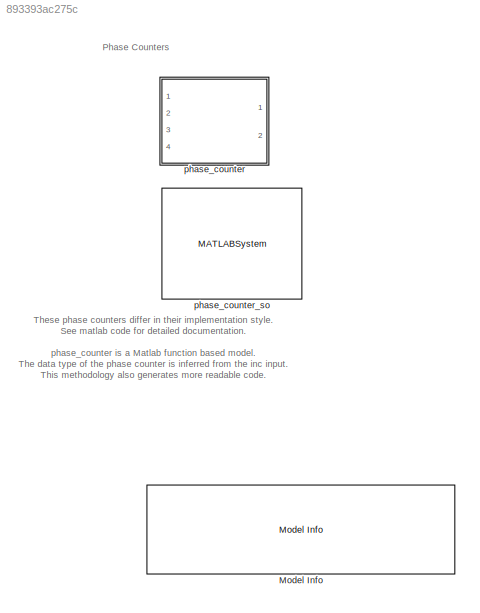
MODEL slx_893393ac275c
KIND library
CONFIG AbsTol = auto
CONFIG EnableMultiTasking = off
CONFIG FixedStep = auto
CONFIG MaxStep = auto
CONFIG MinStep = auto
CONFIG RelTol = 1e-3
CONFIG SampleTimeConstraint = Unconstrained
CONFIG Solver = VariableStepAuto
CONFIG SolverName = VariableStepAuto
CONFIG StartTime = 0.0
CONFIG StopTime = 10.0
BLOCK [Reference] Model Info  REF=simulink/Model-Wide
Utilities/Model Info
  Ports = []
  SourceBlock = simulink/Model-Wide\nUtilities/Model Info
  SourceProductBaseCode = SL
  SourceProductName = Simulink
  SourceType = CMBlock
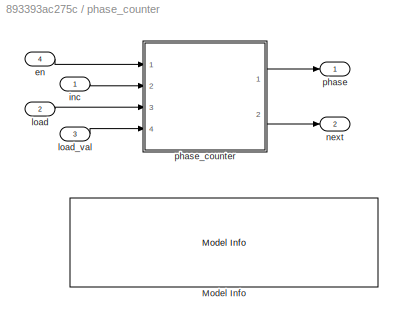
BLOCK [SubSystem] phase_counter
  Ports = [4, 2]
  RequestExecContextInheritance = off
BLOCK [Reference] phase_counter/Model Info  REF=simulink/Model-Wide
Utilities/Model Info
  Ports = []
  SourceBlock = simulink/Model-Wide\nUtilities/Model Info
  SourceProductBaseCode = SL
  SourceProductName = Simulink
  SourceType = CMBlock
BLOCK [Inport] phase_counter/en
  IconDisplay = Port number
  Port = 4
BLOCK [Inport] phase_counter/inc
  IconDisplay = Port number
BLOCK [Inport] phase_counter/load
  IconDisplay = Port number
  Port = 2
BLOCK [Inport] phase_counter/load_val
  IconDisplay = Port number
  Port = 3
BLOCK [Outport] phase_counter/next
  IconDisplay = Port number
  Port = 2
BLOCK [Outport] phase_counter/phase
  IconDisplay = Port number
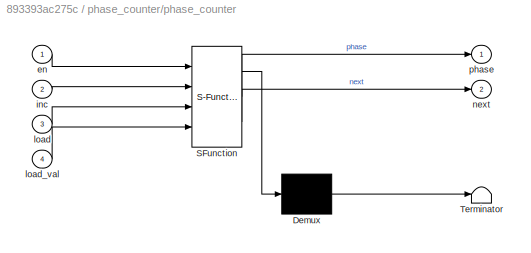
BLOCK [SubSystem] phase_counter/phase_counter
  ErrorFcn = Stateflow.Translate.translate
  PermitHierarchicalResolution = ExplicitOnly
  Ports = [4, 2]
  RequestExecContextInheritance = off
  SFBlockType = MATLAB Function
  TreatAsAtomicUnit = on
BLOCK [Demux] phase_counter/phase_counter/ Demux 
  Outputs = 1
  Ports = [1, 1]
BLOCK [S-Function] phase_counter/phase_counter/ SFunction 
  EnableBusSupport = off
  FunctionName = sf_sfun
  PortCounts = [4 3]
  Ports = [4, 3]
  SFcnIsStateOwnerBlock = off
  SFunctionDeploymentMode = off
  Tag = Stateflow S-Function 2
BLOCK [Terminator] phase_counter/phase_counter/ Terminator 
BLOCK [Inport] phase_counter/phase_counter/en
  IconDisplay = Port number
BLOCK [Inport] phase_counter/phase_counter/inc
  IconDisplay = Port number
  Port = 2
BLOCK [Inport] phase_counter/phase_counter/load
  IconDisplay = Port number
  Port = 3
BLOCK [Inport] phase_counter/phase_counter/load_val
  IconDisplay = Port number
  Port = 4
BLOCK [Outport] phase_counter/phase_counter/next
  IconDisplay = Port number
  Port = 2
BLOCK [Outport] phase_counter/phase_counter/phase
  IconDisplay = Port number
BLOCK [MATLABSystem] phase_counter_so
  MaskDisplay = disp('phase_counter_so');\nport_label('input',1,'en');\nport_label('input',2,'inc');\nport_label('input',3,'load');\nport_label('input',4,'load_val');\nport_label('output',1,'phase');\nport_label('output',2,'next');
  MaskType = phase_counter_so
  Ports = [4, 2]
  SimulateUsing = Code generation
  System = phase_counter_so
  WordLength = 8
ANNOTATION (root): Phase Counters
ANNOTATION (root): These phase counters differ in their implementation style. See matlab code for detailed documentation. phase_counter is a Matlab function based model. The data type of the phase counter is inferred from the inc input. This methodology also generates more readable code. phase_counter_so is a Matlab system object The data type of the phase counter is a block parameter. Casting of inc and load_val is...<+64ch>
LINE phase_counter/en:1 -> phase_counter/phase_counter:1
LINE phase_counter/inc:1 -> phase_counter/phase_counter:2
LINE phase_counter/load:1 -> phase_counter/phase_counter:3
LINE phase_counter/load_val:1 -> phase_counter/phase_counter:4
LINE phase_counter/phase_counter:1 -> phase_counter/phase:1
LINE phase_counter/phase_counter:2 -> phase_counter/next:1
CHART phase_counter/phase_counter states=1 transitions=1
  STATE_LABEL 'eML_blk_kernel()'
  STATE_LABEL 'SCRIPT:\n%#codegen\nfunction [ phase, next ] = phase_counter( en, inc, load, load_val )\n\n[ phase, next ] = phase_counter( en, inc, load, load_val );'
